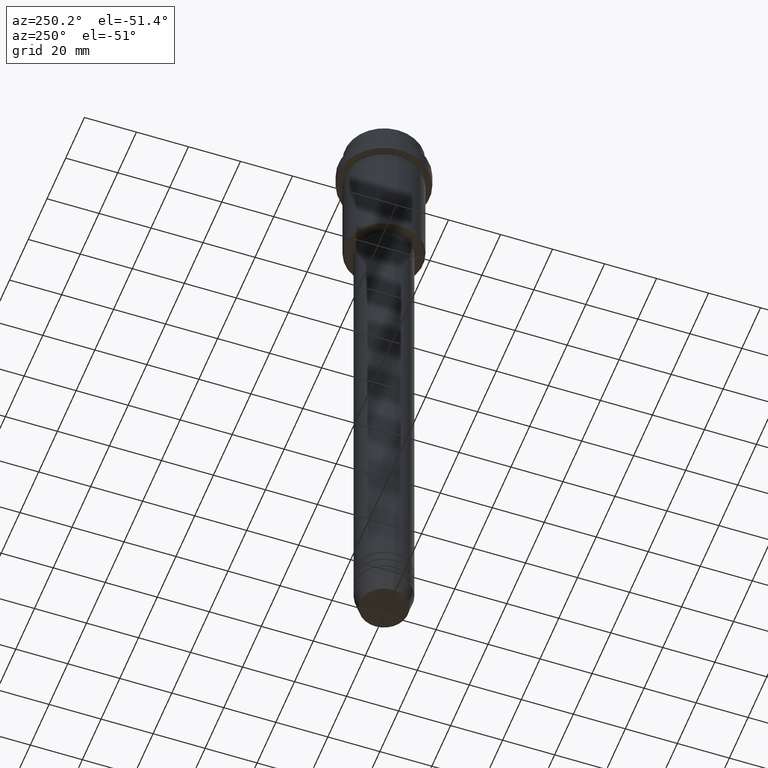
[diagram: clean part render]
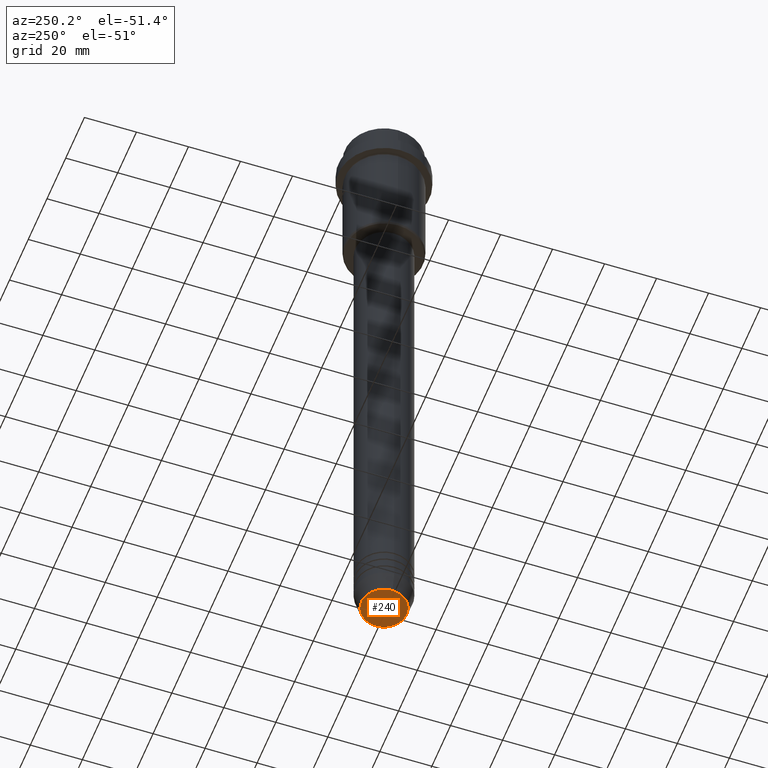
[diagram: same view with one face highlighted and labeled with its STEP entity id]
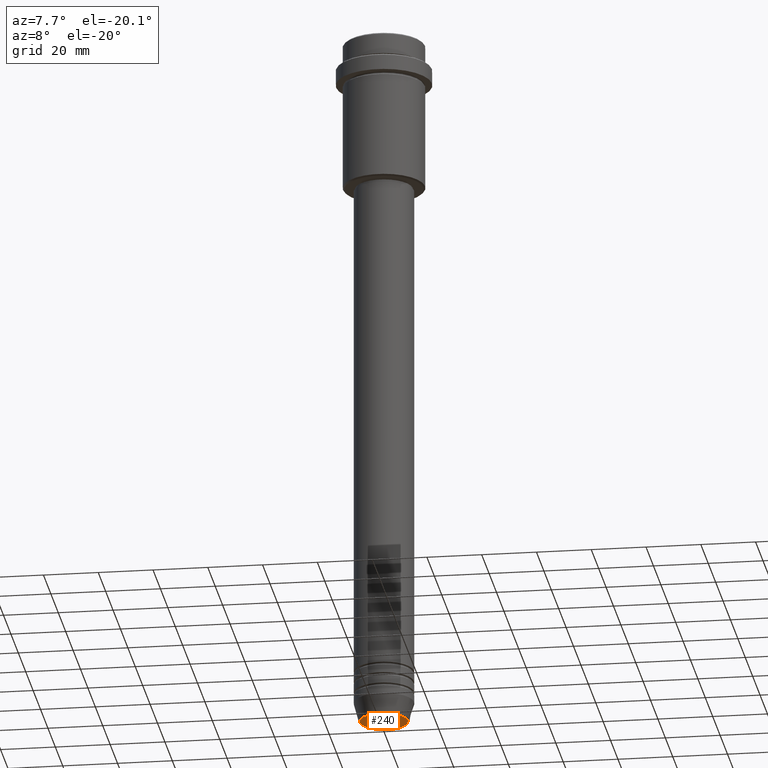
[diagram: same view with one face highlighted and labeled with its STEP entity id]
A machine part, auxiliary view. The second image highlights one B-rep face of the part: STEP entity #240.
A second angle (auxiliary view) of the same face is appended — the face is thin or edge-on in the first view.
In plain terms, the highlighted planar face has unit normal (0, -0, 1).
Its self-contained STEP definition (entity closure, byte-faithful):
#102 = AXIS2_PLACEMENT_3D ( 'NONE', #779, #544, #1102 ) ;
#147 = CIRCLE ( 'NONE', #102, 8.740692158992656502 ) ;
#184 = DIRECTION ( 'NONE',  ( 1.000000000000000000, 0.000000000000000000, 0.000000000000000000 ) ) ;
#212 = AXIS2_PLACEMENT_3D ( 'NONE', #868, #641, #954 ) ;
#240 = ADVANCED_FACE ( 'NONE', ( #1195 ), #292, .F. ) ;
#292 = PLANE ( 'NONE',  #212 ) ;
#342 = EDGE_CURVE ( 'NONE', #557, #1054, #1178, .T. ) ;
#544 = DIRECTION ( 'NONE',  ( 0.000000000000000000, 0.000000000000000000, -1.000000000000000000 ) ) ;
#557 = VERTEX_POINT ( 'NONE', #966 ) ;
#617 = ORIENTED_EDGE ( 'NONE', *, *, #1192, .T. ) ;
#641 = DIRECTION ( 'NONE',  ( 0.000000000000000000, -0.000000000000000000, 1.000000000000000000 ) ) ;
#778 = AXIS2_PLACEMENT_3D ( 'NONE', #1090, #1173, #184 ) ;
#779 = CARTESIAN_POINT ( 'NONE',  ( 0.000000000000000000, 0.000000000000000000, -260.0000000000000000 ) ) ;
#868 = CARTESIAN_POINT ( 'NONE',  ( 0.000000000000000000, 0.000000000000000000, -260.0000000000000000 ) ) ;
#954 = DIRECTION ( 'NONE',  ( 1.000000000000000000, 0.000000000000000000, 0.000000000000000000 ) ) ;
#966 = CARTESIAN_POINT ( 'NONE',  ( 8.740692158992656502, 0.000000000000000000, -260.0000000000000000 ) ) ;
#996 = ORIENTED_EDGE ( 'NONE', *, *, #342, .T. ) ;
#1054 = VERTEX_POINT ( 'NONE', #1170 ) ;
#1089 = EDGE_LOOP ( 'NONE', ( #996, #617 ) ) ;
#1090 = CARTESIAN_POINT ( 'NONE',  ( 0.000000000000000000, 0.000000000000000000, -260.0000000000000000 ) ) ;
#1102 = DIRECTION ( 'NONE',  ( 1.000000000000000000, 0.000000000000000000, 0.000000000000000000 ) ) ;
#1170 = CARTESIAN_POINT ( 'NONE',  ( -8.740692158992656502, 1.099999016768739653E-15, -260.0000000000000000 ) ) ;
#1173 = DIRECTION ( 'NONE',  ( 0.000000000000000000, 0.000000000000000000, -1.000000000000000000 ) ) ;
#1178 = CIRCLE ( 'NONE', #778, 8.740692158992656502 ) ;
#1192 = EDGE_CURVE ( 'NONE', #1054, #557, #147, .T. ) ;
#1195 = FACE_OUTER_BOUND ( 'NONE', #1089, .T. ) ;